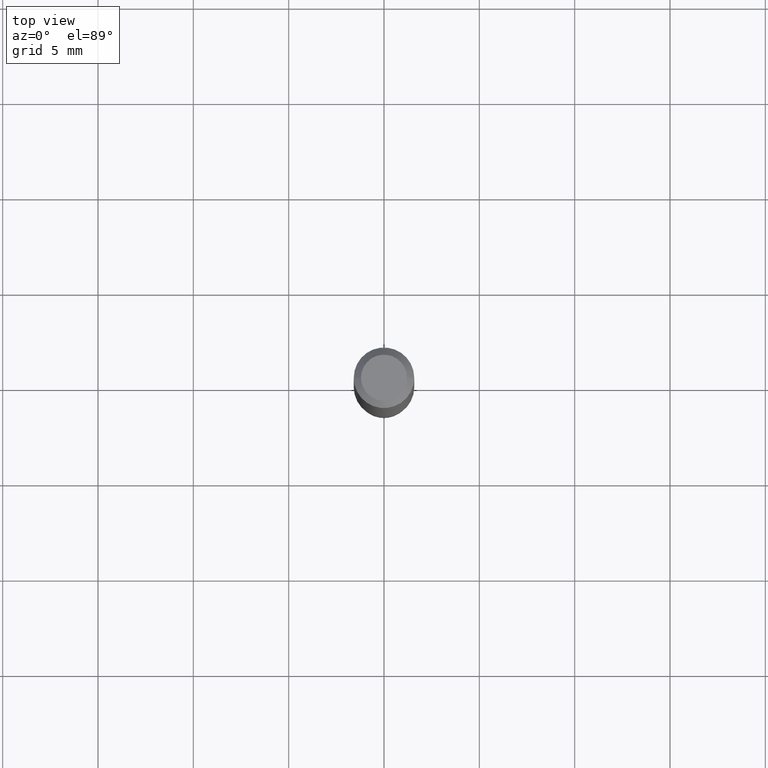
[diagram: clean part render]
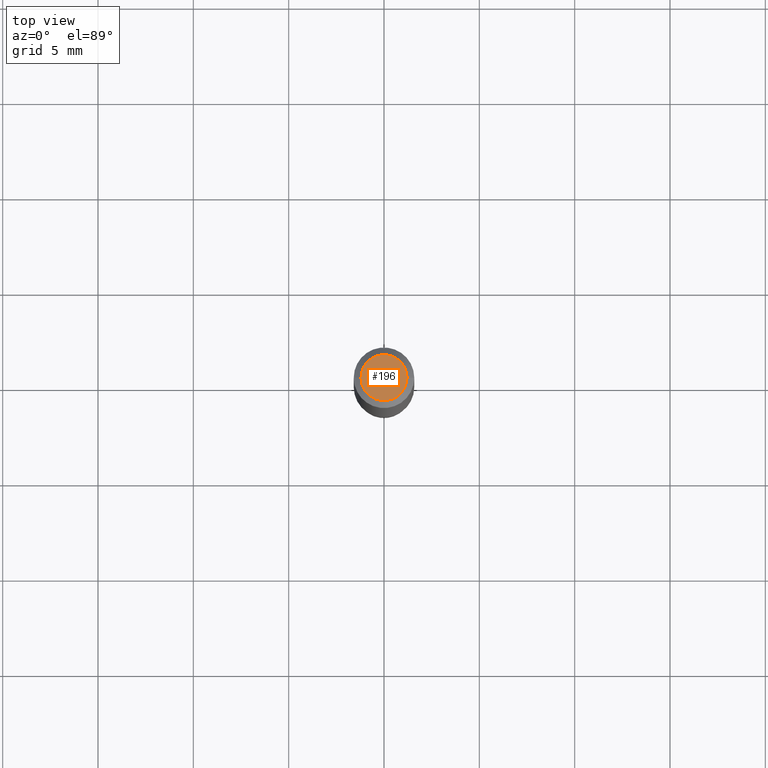
[diagram: same view with one face highlighted and labeled with its STEP entity id]
A machine part, top view. The second image highlights one B-rep face of the part: STEP entity #196.
In plain terms, the highlighted planar face has unit normal (0, -0, -1).
Its self-contained STEP definition (entity closure, byte-faithful):
#12 = DIRECTION ( 'NONE',  ( -2.445468806185136597E-29, 3.491481338843145583E-15, 1.000000000000000000 ) ) ;
#30 = AXIS2_PLACEMENT_3D ( 'NONE', #296, #12, #374 ) ;
#38 = ORIENTED_EDGE ( 'NONE', *, *, #361, .T. ) ;
#93 = CIRCLE ( 'NONE', #159, 0.04750000000000000749 ) ;
#96 = VERTEX_POINT ( 'NONE', #288 ) ;
#101 = DIRECTION ( 'NONE',  ( -1.000000000000000000, 6.982962677686265922E-15, -4.876176775795935793E-29 ) ) ;
#133 = DIRECTION ( 'NONE',  ( 1.000000000000000000, -6.982962677686266711E-15, 4.852736867747365086E-29 ) ) ;
#159 = AXIS2_PLACEMENT_3D ( 'NONE', #165, #245, #133 ) ;
#164 = EDGE_LOOP ( 'NONE', ( #263, #38 ) ) ;
#165 = CARTESIAN_POINT ( 'NONE',  ( -6.680649051745406845E-45, 9.538196290434862081E-31, 2.731847993664263218E-16 ) ) ;
#187 = CARTESIAN_POINT ( 'NONE',  ( 3.316907271900976589E-16, 0.04750000000000000749, -2.925296391183627249E-17 ) ) ;
#190 = PLANE ( 'NONE',  #459 ) ;
#196 = ADVANCED_FACE ( 'NONE', ( #234 ), #190, .F. ) ;
#234 = FACE_OUTER_BOUND ( 'NONE', #164, .T. ) ;
#245 = DIRECTION ( 'NONE',  ( -2.445468806185136597E-29, 3.491481338843145583E-15, 1.000000000000000000 ) ) ;
#263 = ORIENTED_EDGE ( 'NONE', *, *, #489, .T. ) ;
#288 = CARTESIAN_POINT ( 'NONE',  ( 0.04750000000000000749, -4.035134999187568762E-16, 2.731847993664288856E-16 ) ) ;
#290 = VERTEX_POINT ( 'NONE', #466 ) ;
#296 = CARTESIAN_POINT ( 'NONE',  ( -6.680649051745406845E-45, 9.538196290434862081E-31, 2.731847993664263218E-16 ) ) ;
#355 = DIRECTION ( 'NONE',  ( 2.438088387897960049E-29, -3.491481338843145188E-15, -1.000000000000000000 ) ) ;
#361 = EDGE_CURVE ( 'NONE', #96, #290, #428, .T. ) ;
#374 = DIRECTION ( 'NONE',  ( 1.000000000000000000, -6.982962677686266711E-15, 4.852736867747365086E-29 ) ) ;
#428 = CIRCLE ( 'NONE', #30, 0.04750000000000000749 ) ;
#459 = AXIS2_PLACEMENT_3D ( 'NONE', #187, #355, #101 ) ;
#466 = CARTESIAN_POINT ( 'NONE',  ( -0.04750000000000000749, 3.578768372314221353E-16, 2.731847993664239060E-16 ) ) ;
#489 = EDGE_CURVE ( 'NONE', #290, #96, #93, .T. ) ;